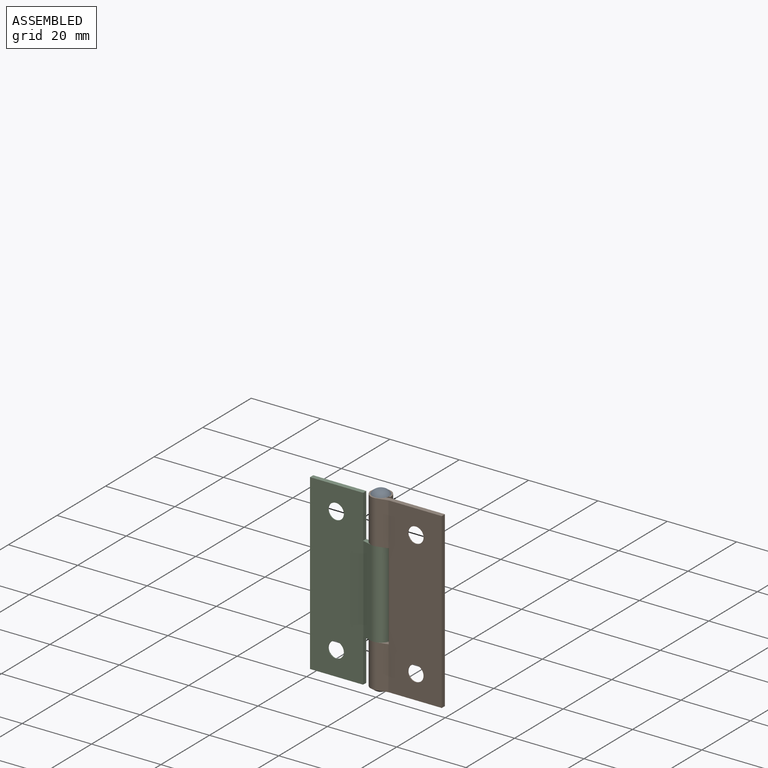
[diagram: assembled view]
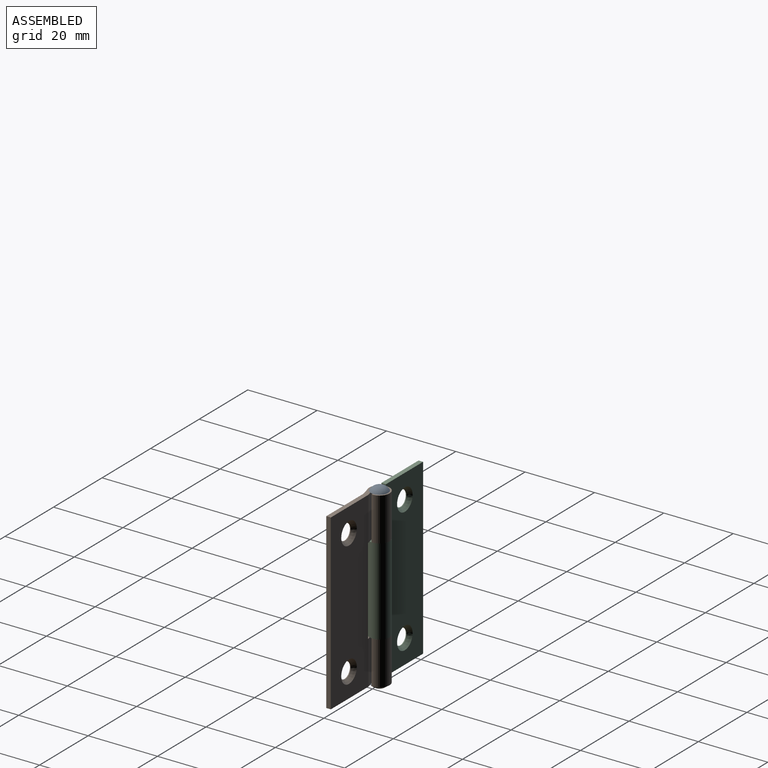
[diagram: assembled view, second angle]
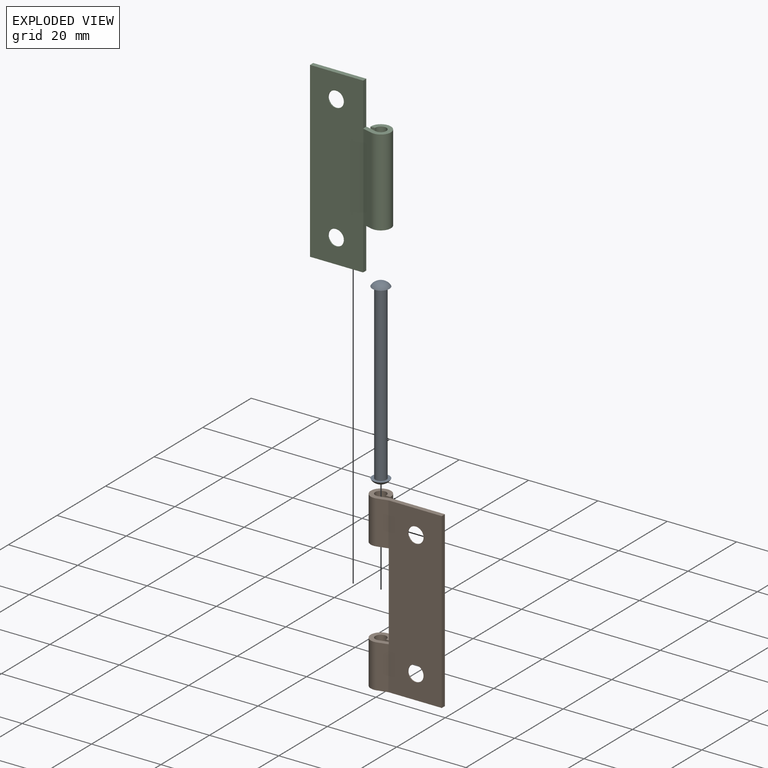
[diagram: exploded view]
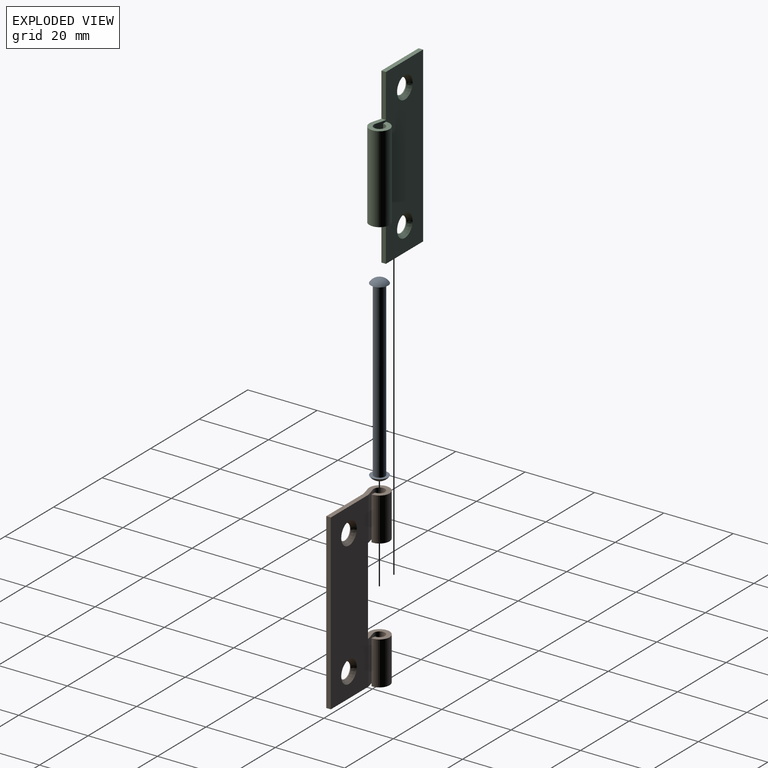
[diagram: exploded view, second angle]
ASSEMBLY  parts=3 mates=2
PART A: 5 faces, bbox 5x5x52.6 mm
  f0: torus R=0.26mm, axis (0,0,1), area 25.4mm2, adj f4
  f1: torus R=0.26mm, axis (0,0,-1), area 25.4mm2, adj f3
  f2: cylinder r=1.6mm len=50.01mm, axis (0,0,-1), area 502.8mm2, adj f3,f4
  f3: plane 4.98x4.98mm, normal (0,0,-1), area 11.4mm2, adj f1,f2
  f4: plane 4.98x4.98mm, normal (0,0,1), area 11.4mm2, adj f0,f2
PART B: 24 faces, bbox 21.9x5.8x50 mm
  f0: cone r=3.2mm half-angle=41deg, axis (0,1,0), area 24.8mm2, adj f1,f18
  f1: cylinder r=2.25mm len=4.5mm, axis (0,1,0), area 2.9mm2, adj f0,f20
  f2: cone r=3.2mm half-angle=41deg, axis (0,1,0), area 24.8mm2, adj f3,f18
  f3: cylinder r=2.25mm len=4.5mm, axis (0,1,0), area 2.9mm2, adj f2,f20
  f4: cylinder r=1.6mm len=12.5mm, axis (0,0,1), area 101.6mm2, adj f9,f11,f16,f22
  f5: cylinder r=1.6mm len=12.5mm, axis (0,0,1), area 101.6mm2, adj f8,f10,f17,f21
  f6: cylinder r=2.9mm len=12.5mm, axis (0,0,1), area 184.2mm2, adj f9,f15,f16,f22
  f7: cylinder r=2.9mm len=12.5mm, axis (0,0,1), area 184.2mm2, adj f8,f14,f17,f21
  f8: plane 12.5x1.29mm, normal (-0.1,-0.99,0), area 16.3mm2, adj f5,f7,f17,f21
  f9: plane 12.5x1.29mm, normal (-0.1,-0.99,0), area 16.3mm2, adj f4,f6,f16,f22
  f10: plane 12.5x2.75mm, normal (-0.26,0.97,0), area 35.6mm2, adj f5,f12,f17,f21
  f11: plane 12.5x2.75mm, normal (-0.26,0.97,0), area 35.6mm2, adj f4,f12,f16,f22
  f12: cylinder r=2.13mm len=50.01mm, axis (0,0,1), area 14.7mm2, adj f10,f11,f16,f17,f18,f21,f22,f23
  f13: cylinder r=0.83mm len=50.01mm, axis (0,0,1), area 5.7mm2, adj f14,f15,f16,f17,f20,f21,f22,f23
  f14: plane 12.5x2.75mm, normal (0.26,-0.97,0), area 35.6mm2, adj f7,f13,f17,f21
  f15: plane 12.5x2.75mm, normal (0.26,-0.97,0), area 35.6mm2, adj f6,f13,f16,f22
  f16: plane 21.9x5.8mm, normal (0,0,-1), area 38.9mm2, adj f4,f6,f9,f11,f12,f13,f15,f18
  f17: plane 21.9x5.8mm, normal (0,0,1), area 38.9mm2, adj f5,f7,f8,f10,f12,f13,f14,f18
  f18: plane 50.01x15.28mm, normal (0,1,0), area 700.1mm2, adj f0,f2,f12,f16,f17,f19
  f19: plane 50.01x1.3mm, normal (1,0,0), area 65mm2, adj f16,f17,f18,f20
  f20: plane 50.01x15.28mm, normal (0,-1,0), area 732.6mm2, adj f1,f3,f13,f16,f17,f19
  f21: plane 6.6x5.8mm, normal (0,0,-1), area 19mm2, adj f5,f7,f8,f10,f12,f13,f14,f23
  f22: plane 6.6x5.8mm, normal (0,0,1), area 19mm2, adj f4,f6,f9,f11,f12,f13,f15,f23
  f23: plane 25.01x1.3mm, normal (-1,-0.01,0), area 32.5mm2, adj f12,f13,f21,f22
PART C: 20 faces, bbox 21.9x5.8x50 mm
  f0: cone r=3.2mm half-angle=41deg, axis (0,1,0), area 24.8mm2, adj f1,f13
  f1: cylinder r=2.25mm len=4.5mm, axis (0,1,0), area 2.9mm2, adj f0,f15
  f2: cone r=3.2mm half-angle=41deg, axis (0,1,0), area 24.8mm2, adj f3,f13
  f3: cylinder r=2.25mm len=4.5mm, axis (0,1,0), area 2.9mm2, adj f2,f15
  f4: cylinder r=1.6mm len=25.01mm, axis (0,0,-1), area 201.6mm2, adj f6,f7,f16,f18
  f5: cylinder r=2.9mm len=25.01mm, axis (0,0,-1), area 365.4mm2, adj f6,f10,f16,f18
  f6: plane 25.01x1.3mm, normal (0.06,-1,0), area 32.5mm2, adj f4,f5,f16,f18
  f7: plane 25.01x2.75mm, normal (0.26,0.97,0), area 71.1mm2, adj f4,f8,f16,f18
  f8: cylinder r=2.13mm len=50.01mm, axis (0,0,-1), area 15mm2, adj f7,f11,f12,f13,f16,f17,f18,f19
  f9: cylinder r=0.83mm len=50.01mm, axis (0,0,-1), area 5.8mm2, adj f10,f11,f12,f15,f16,f17,f18,f19
  f10: plane 25.01x2.75mm, normal (-0.26,-0.97,0), area 71.1mm2, adj f5,f9,f16,f18
  f11: plane 15.32x1.3mm, normal (0,0,1), area 19.9mm2, adj f8,f9,f13,f14,f15,f19
  f12: plane 15.32x1.3mm, normal (0,0,-1), area 19.9mm2, adj f8,f9,f13,f14,f15,f17
  f13: plane 50.01x15.28mm, normal (0,1,0), area 700.1mm2, adj f0,f2,f8,f11,f12,f14
  f14: plane 50.01x1.3mm, normal (-1,0,0), area 65mm2, adj f11,f12,f13,f15
  f15: plane 50.01x15.28mm, normal (0,-1,0), area 732.6mm2, adj f1,f3,f9,f11,f12,f14
  f16: plane 6.6x5.8mm, normal (0,0,-1), area 18.9mm2, adj f4,f5,f6,f7,f8,f9,f10,f17
  f17: plane 12.5x1.3mm, normal (1,-0.02,0), area 16.3mm2, adj f8,f9,f12,f16
  f18: plane 6.6x5.8mm, normal (0,0,1), area 18.9mm2, adj f4,f5,f6,f7,f8,f9,f10,f19
  f19: plane 12.5x1.3mm, normal (1,-0.02,0), area 16.3mm2, adj f8,f9,f11,f18
PLACE A at identity
PLACE B at identity fixed
PLACE C at identity
MATE fastened B.f4 <-> A.f0  axis (0,0,1) through (0,2.04,25.28)mm
MATE revolute B.f4 <-> C.f4  axis (0,0,1) through (0,2.04,0.27)mm
